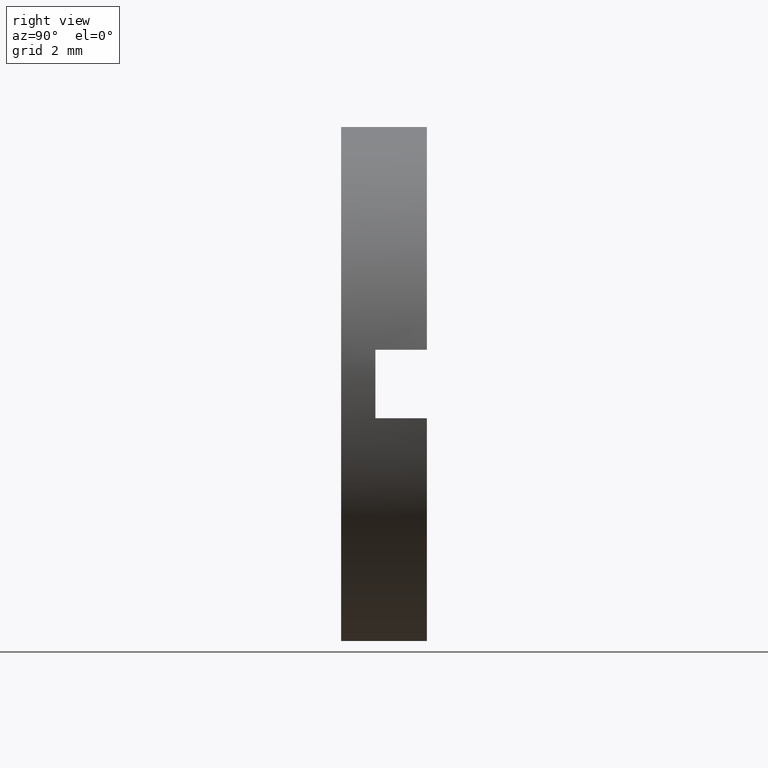
[diagram: clean part render]
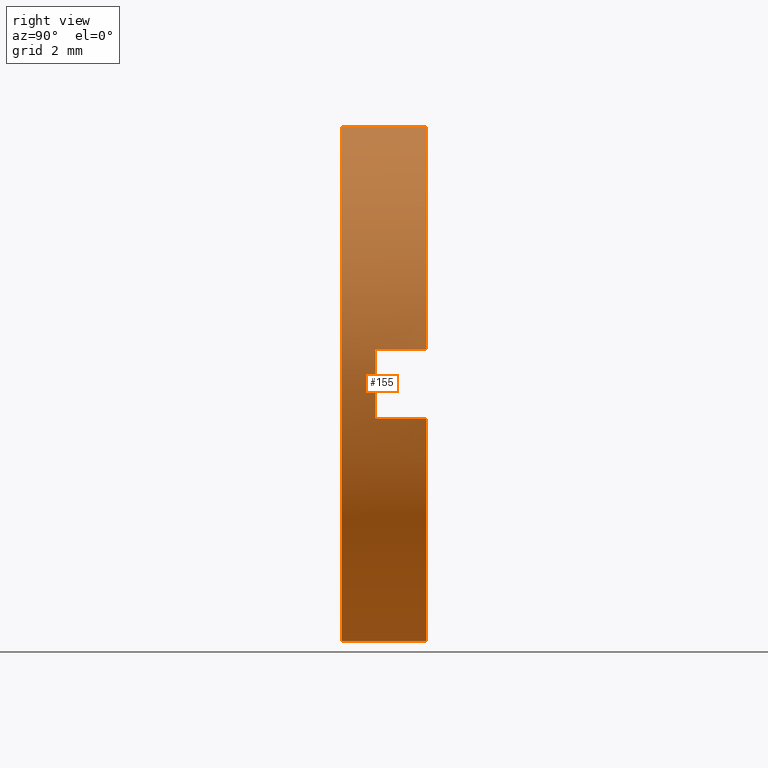
[diagram: same view with one face highlighted and labeled with its STEP entity id]
A machine part, right view. The second image highlights one B-rep face of the part: STEP entity #155.
In plain terms, the highlighted cylindrical surface (partial cylindrical patch) has radius 7.5 mm, axis along (-0, 1, -0).
Its self-contained STEP definition (entity closure, byte-faithful):
#38 = CARTESIAN_POINT ( 'NONE',  ( 0.0000000000000000000, -4.464249787179428900, 7.500000000000007100 ) ) ;
#42 = ORIENTED_EDGE ( 'NONE', *, *, #134, .T. ) ;
#50 = AXIS2_PLACEMENT_3D ( 'NONE', #506, #222, #412 ) ;
#51 = VERTEX_POINT ( 'NONE', #55 ) ;
#53 = DIRECTION ( 'NONE',  ( -0.0000000000000000000, 1.000000000000000000, -0.0000000000000000000 ) ) ;
#55 = CARTESIAN_POINT ( 'NONE',  ( 7.433034373659247700, -1.964249787179430900, -1.000000000000000000 ) ) ;
#64 = DIRECTION ( 'NONE',  ( 0.0000000000000000000, 1.000000000000000000, 0.0000000000000000000 ) ) ;
#85 = CARTESIAN_POINT ( 'NONE',  ( 9.184850993605157800E-016, -1.964249787179434000, -7.500000000000007100 ) ) ;
#104 = CARTESIAN_POINT ( 'NONE',  ( 7.433034373659259200, 56.26084262701361600, 1.000000000000000000 ) ) ;
#110 = CARTESIAN_POINT ( 'NONE',  ( 0.0000000000000000000, 56.26084262701361600, 0.0000000000000000000 ) ) ;
#113 = DIRECTION ( 'NONE',  ( 0.0000000000000000000, 0.0000000000000000000, 1.000000000000000000 ) ) ;
#117 = FACE_OUTER_BOUND ( 'NONE', #214, .T. ) ;
#125 = CARTESIAN_POINT ( 'NONE',  ( 7.433034373659258300, -3.464249787179428400, -0.9999999999999995600 ) ) ;
#127 = LINE ( 'NONE', #589, #440 ) ;
#134 = EDGE_CURVE ( 'NONE', #51, #325, #263, .T. ) ;
#146 = ORIENTED_EDGE ( 'NONE', *, *, #154, .T. ) ;
#150 = CIRCLE ( 'NONE', #50, 7.500000000000007100 ) ;
#153 = VERTEX_POINT ( 'NONE', #197 ) ;
#154 = EDGE_CURVE ( 'NONE', #409, #444, #336, .T. ) ;
#155 = ADVANCED_FACE ( 'NONE', ( #117 ), #301, .T. ) ;
#158 = ORIENTED_EDGE ( 'NONE', *, *, #525, .T. ) ;
#167 = VECTOR ( 'NONE', #410, 1000.000000000000000 ) ;
#169 = AXIS2_PLACEMENT_3D ( 'NONE', #110, #190, #513 ) ;
#176 = ORIENTED_EDGE ( 'NONE', *, *, #275, .F. ) ;
#190 = DIRECTION ( 'NONE',  ( -0.0000000000000000000, 1.000000000000000000, -0.0000000000000000000 ) ) ;
#192 = VERTEX_POINT ( 'NONE', #516 ) ;
#197 = CARTESIAN_POINT ( 'NONE',  ( 9.184850993605157800E-016, -4.464249787179428900, -7.500000000000007100 ) ) ;
#200 = EDGE_CURVE ( 'NONE', #409, #325, #208, .T. ) ;
#202 = VECTOR ( 'NONE', #53, 1000.000000000000000 ) ;
#208 = CIRCLE ( 'NONE', #420, 7.500000000000007100 ) ;
#211 = DIRECTION ( 'NONE',  ( -0.0000000000000000000, 1.000000000000000000, -0.0000000000000000000 ) ) ;
#212 = DIRECTION ( 'NONE',  ( -0.0000000000000000000, 1.000000000000000000, -0.0000000000000000000 ) ) ;
#214 = EDGE_LOOP ( 'NONE', ( #158, #217, #490, #42, #370, #146, #176, #528 ) ) ;
#216 = DIRECTION ( 'NONE',  ( 0.0000000000000000000, 0.0000000000000000000, 1.000000000000000000 ) ) ;
#217 = ORIENTED_EDGE ( 'NONE', *, *, #429, .T. ) ;
#222 = DIRECTION ( 'NONE',  ( -0.0000000000000000000, 1.000000000000000000, -0.0000000000000000000 ) ) ;
#242 = EDGE_CURVE ( 'NONE', #51, #386, #360, .T. ) ;
#263 = LINE ( 'NONE', #520, #418 ) ;
#271 = DIRECTION ( 'NONE',  ( -0.0000000000000000000, 1.000000000000000000, -0.0000000000000000000 ) ) ;
#274 = CARTESIAN_POINT ( 'NONE',  ( 7.433034373659247700, -1.964249787179430900, 1.000000000000000000 ) ) ;
#275 = EDGE_CURVE ( 'NONE', #192, #444, #472, .T. ) ;
#290 = AXIS2_PLACEMENT_3D ( 'NONE', #441, #211, #216 ) ;
#296 = VERTEX_POINT ( 'NONE', #38 ) ;
#301 = CYLINDRICAL_SURFACE ( 'NONE', #169, 7.500000000000007100 ) ;
#311 = AXIS2_PLACEMENT_3D ( 'NONE', #400, #212, #538 ) ;
#325 = VERTEX_POINT ( 'NONE', #125 ) ;
#335 = CARTESIAN_POINT ( 'NONE',  ( 0.0000000000000000000, -3.464249787179428400, 0.0000000000000000000 ) ) ;
#336 = LINE ( 'NONE', #104, #202 ) ;
#360 = CIRCLE ( 'NONE', #290, 7.500000000000007100 ) ;
#370 = ORIENTED_EDGE ( 'NONE', *, *, #200, .F. ) ;
#373 = DIRECTION ( 'NONE',  ( 0.0000000000000000000, -1.000000000000000000, 0.0000000000000000000 ) ) ;
#386 = VERTEX_POINT ( 'NONE', #85 ) ;
#400 = CARTESIAN_POINT ( 'NONE',  ( 0.0000000000000000000, -1.964249787179434000, 0.0000000000000000000 ) ) ;
#404 = CARTESIAN_POINT ( 'NONE',  ( 9.184850993605157800E-016, 56.26084262701361600, -7.500000000000007100 ) ) ;
#409 = VERTEX_POINT ( 'NONE', #448 ) ;
#410 = DIRECTION ( 'NONE',  ( -0.0000000000000000000, 1.000000000000000000, -0.0000000000000000000 ) ) ;
#412 = DIRECTION ( 'NONE',  ( 0.0000000000000000000, 0.0000000000000000000, 1.000000000000000000 ) ) ;
#418 = VECTOR ( 'NONE', #373, 1000.000000000000000 ) ;
#420 = AXIS2_PLACEMENT_3D ( 'NONE', #335, #64, #113 ) ;
#429 = EDGE_CURVE ( 'NONE', #153, #386, #518, .T. ) ;
#440 = VECTOR ( 'NONE', #271, 1000.000000000000000 ) ;
#441 = CARTESIAN_POINT ( 'NONE',  ( 0.0000000000000000000, -1.964249787179434000, 0.0000000000000000000 ) ) ;
#444 = VERTEX_POINT ( 'NONE', #274 ) ;
#448 = CARTESIAN_POINT ( 'NONE',  ( 7.433034373659258300, -3.464249787179428400, 0.9999999999999995600 ) ) ;
#472 = CIRCLE ( 'NONE', #311, 7.500000000000007100 ) ;
#490 = ORIENTED_EDGE ( 'NONE', *, *, #242, .F. ) ;
#506 = CARTESIAN_POINT ( 'NONE',  ( 0.0000000000000000000, -4.464249787179428900, 0.0000000000000000000 ) ) ;
#513 = DIRECTION ( 'NONE',  ( 0.0000000000000000000, 0.0000000000000000000, 1.000000000000000000 ) ) ;
#516 = CARTESIAN_POINT ( 'NONE',  ( 0.0000000000000000000, -1.964249787179434000, 7.500000000000007100 ) ) ;
#518 = LINE ( 'NONE', #404, #167 ) ;
#520 = CARTESIAN_POINT ( 'NONE',  ( 7.433034373659259200, 56.26084262701361600, -1.000000000000000000 ) ) ;
#525 = EDGE_CURVE ( 'NONE', #296, #153, #150, .T. ) ;
#528 = ORIENTED_EDGE ( 'NONE', *, *, #582, .F. ) ;
#538 = DIRECTION ( 'NONE',  ( 0.0000000000000000000, 0.0000000000000000000, 1.000000000000000000 ) ) ;
#582 = EDGE_CURVE ( 'NONE', #296, #192, #127, .T. ) ;
#589 = CARTESIAN_POINT ( 'NONE',  ( 0.0000000000000000000, 56.26084262701361600, 7.500000000000007100 ) ) ;